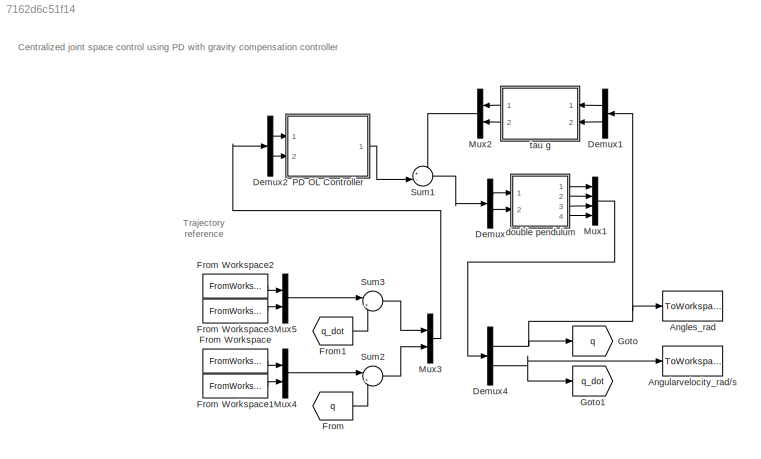
MODEL slx_7162d6c51f14
KIND model
CONFIG AbsTol = auto
CONFIG EnableMultiTasking = off
CONFIG FixedStep = auto
CONFIG MaxStep = auto
CONFIG MinStep = auto
CONFIG RelTol = 1e-3
CONFIG SampleTimeConstraint = Unconstrained
CONFIG Solver = VariableStepAuto
CONFIG SolverName = VariableStepAuto
CONFIG StartTime = 0.0
CONFIG StopTime = 10.0
BLOCK [ToWorkspace] Angles_rad
  FixptAsFi = on
  MaxDataPoints = inf
  Ports = [1]
  SampleTime = -1
  Save2DSignal = 3-D array (concatenate along third dimension)
  SaveFormat = Timeseries
  VariableName = q
BLOCK [ToWorkspace] Angularvelocity_rad//s
  FixptAsFi = on
  MaxDataPoints = inf
  Ports = [1]
  SampleTime = -1
  Save2DSignal = 3-D array (concatenate along third dimension)
  SaveFormat = Timeseries
  VariableName = q_dot
BLOCK [Demux] Demux
  DisplayOption = bar
  Outputs = 2
  Ports = [1, 2]
BLOCK [Demux] Demux1
  DisplayOption = bar
  Outputs = 2
  Ports = [1, 2]
BLOCK [Demux] Demux2
  DisplayOption = bar
  Outputs = 2
  Ports = [1, 2]
BLOCK [Demux] Demux4
  DisplayOption = bar
  Outputs = 2
  Ports = [1, 2]
BLOCK [From] From
  GotoTag = q
BLOCK [FromWorkspace] From Workspace
  SampleTime = 0
  VariableName = q1d
  ZeroCross = on
BLOCK [FromWorkspace] From Workspace1
  SampleTime = 0
  VariableName = q2d
  ZeroCross = on
BLOCK [FromWorkspace] From Workspace2
  SampleTime = 0
  VariableName = q1d_dot
  ZeroCross = on
BLOCK [FromWorkspace] From Workspace3
  SampleTime = 0
  VariableName = q2d_dot
  ZeroCross = on
BLOCK [From] From1
  GotoTag = q_dot
BLOCK [Goto] Goto
  GotoTag = q
BLOCK [Goto] Goto1
  GotoTag = q_dot
BLOCK [Mux] Mux1
  DisplayOption = bar
  Ports = [4, 1]
BLOCK [Mux] Mux2
  DisplayOption = bar
  Inputs = 2
  Ports = [2, 1]
BLOCK [Mux] Mux3
  DisplayOption = bar
  Inputs = 2
  Ports = [2, 1]
BLOCK [Mux] Mux4
  DisplayOption = bar
  Inputs = 2
  Ports = [2, 1]
BLOCK [Mux] Mux5
  DisplayOption = bar
  Inputs = 2
  Ports = [2, 1]
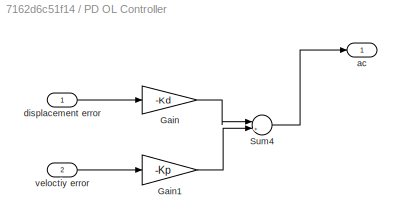
BLOCK [SubSystem] PD OL Controller
  Ports = [2, 1]
  RequestExecContextInheritance = off
BLOCK [Gain] PD OL Controller/Gain
  Gain = -Kd
  Multiplication = Matrix(K*u)
  OutDataTypeStr = Inherit: Inherit via internal rule
  ParamDataTypeStr = Inherit: Inherit via internal rule
  SaturateOnIntegerOverflow = off
BLOCK [Gain] PD OL Controller/Gain1
  Gain = -Kp
  Multiplication = Matrix(K*u)
  OutDataTypeStr = Inherit: Inherit via internal rule
  ParamDataTypeStr = Inherit: Inherit via internal rule
  SaturateOnIntegerOverflow = off
BLOCK [Sum] PD OL Controller/Sum4
  IconShape = round
  InputSameDT = off
  Inputs = |++
  OutDataTypeStr = Inherit: Inherit via internal rule
  Ports = [2, 1]
  SaturateOnIntegerOverflow = off
BLOCK [Outport] PD OL Controller/ac
  IconDisplay = Port number
BLOCK [Inport] PD OL Controller/displacement error
  IconDisplay = Port number
BLOCK [Inport] PD OL Controller/veloctiy error
  IconDisplay = Port number
  Port = 2
BLOCK [Sum] Sum1
  IconShape = round
  InputSameDT = off
  Inputs = +-|
  OutDataTypeStr = Inherit: Inherit via internal rule
  Ports = [2, 1]
  SaturateOnIntegerOverflow = off
BLOCK [Sum] Sum2
  IconShape = round
  InputSameDT = off
  Inputs = |+-
  OutDataTypeStr = Inherit: Inherit via internal rule
  Ports = [2, 1]
  SaturateOnIntegerOverflow = off
BLOCK [Sum] Sum3
  IconShape = round
  InputSameDT = off
  Inputs = |+-
  OutDataTypeStr = Inherit: Inherit via internal rule
  Ports = [2, 1]
  SaturateOnIntegerOverflow = off
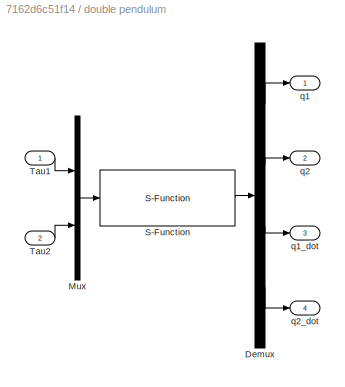
BLOCK [SubSystem] double pendulum 
  Ports = [2, 4]
  RequestExecContextInheritance = off
BLOCK [Demux] double pendulum /Demux
  DisplayOption = bar
  Ports = [1, 4]
BLOCK [Mux] double pendulum /Mux
  DisplayOption = bar
  Inputs = 2
  Ports = [2, 1]
BLOCK [S-Function] double pendulum /S-Function
  EnableBusSupport = off
  FunctionName = m_I_doublependulum
  Parameters = 0 0 0 0
  Ports = [1, 1]
  SFcnIsStateOwnerBlock = off
  SFunctionDeploymentMode = off
BLOCK [Inport] double pendulum /Tau1
  IconDisplay = Port number
BLOCK [Inport] double pendulum /Tau2 
  IconDisplay = Port number
  Port = 2
BLOCK [Outport] double pendulum /q1
  IconDisplay = Port number
BLOCK [Outport] double pendulum /q1_dot 
  IconDisplay = Port number
  Port = 3
BLOCK [Outport] double pendulum /q2 
  IconDisplay = Port number
  Port = 2
BLOCK [Outport] double pendulum /q2_dot
  IconDisplay = Port number
  Port = 4
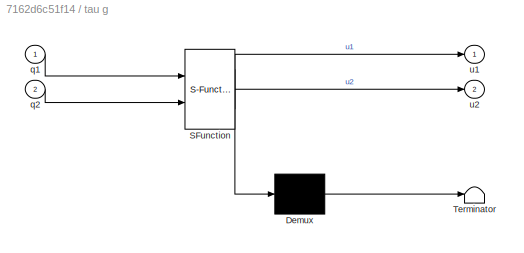
BLOCK [SubSystem] tau g 
  ErrorFcn = Stateflow.Translate.translate
  PermitHierarchicalResolution = ExplicitOnly
  Ports = [2, 2]
  RequestExecContextInheritance = off
  SFBlockType = MATLAB Function
  TreatAsAtomicUnit = on
BLOCK [Demux] tau g / Demux 
  Outputs = 1
  Ports = [1, 1]
BLOCK [S-Function] tau g / SFunction 
  EnableBusSupport = on
  FunctionName = sf_sfun
  PortCounts = [2 3]
  Ports = [2, 3]
  SFcnIsStateOwnerBlock = off
  SFunctionDeploymentMode = off
  Tag = Stateflow S-Function s_VI_pd_with_grav_control_scheme 1
BLOCK [Terminator] tau g / Terminator 
BLOCK [Inport] tau g /q1
  IconDisplay = Port number
BLOCK [Inport] tau g /q2
  IconDisplay = Port number
  Port = 2
BLOCK [Outport] tau g /u1
  IconDisplay = Port number
BLOCK [Outport] tau g /u2
  IconDisplay = Port number
  Port = 2
ANNOTATION (root): Trajectory reference
ANNOTATION (root): Centralized joint space control using PD with gravity compensation controller
LINE Demux1:1 -> tau g :1
LINE Demux1:2 -> tau g :2
LINE Demux2:1 -> PD OL Controller:1
LINE Demux2:2 -> PD OL Controller:2
NET Demux4:1 -> Angles_rad:1, Demux1:1, Goto:1
NET Demux4:2 -> Angularvelocity_rad//s:1, Goto1:1
LINE Demux:1 -> double pendulum :1
LINE Demux:2 -> double pendulum :2
LINE From Workspace1:1 -> Mux4:2
LINE From Workspace2:1 -> Mux5:1
LINE From Workspace3:1 -> Mux5:2
LINE From Workspace:1 -> Mux4:1
LINE From1:1 -> Sum3:2
LINE From:1 -> Sum2:2
LINE Mux1:1 -> Demux4:1
LINE Mux2:1 -> Sum1:1
LINE Mux3:1 -> Demux2:1
LINE Mux4:1 -> Sum2:1
LINE Mux5:1 -> Sum3:1
LINE PD OL Controller/Gain1:1 -> PD OL Controller/Sum4:2
LINE PD OL Controller/Gain:1 -> PD OL Controller/Sum4:1
LINE PD OL Controller/Sum4:1 -> PD OL Controller/ac:1
LINE PD OL Controller/displacement error:1 -> PD OL Controller/Gain:1
LINE PD OL Controller/veloctiy error:1 -> PD OL Controller/Gain1:1
LINE PD OL Controller:1 -> Sum1:2
LINE Sum1:1 -> Demux:1
LINE Sum2:1 -> Mux3:2
LINE Sum3:1 -> Mux3:1
LINE double pendulum /Demux:1 -> double pendulum /q1:1
LINE double pendulum /Demux:2 -> double pendulum /q2 :1
LINE double pendulum /Demux:3 -> double pendulum /q1_dot :1
LINE double pendulum /Demux:4 -> double pendulum /q2_dot:1
LINE double pendulum /Mux:1 -> double pendulum /S-Function:1
LINE double pendulum /S-Function:1 -> double pendulum /Demux:1
LINE double pendulum /Tau1:1 -> double pendulum /Mux:1
LINE double pendulum /Tau2 :1 -> double pendulum /Mux:2
LINE double pendulum :1 -> Mux1:1
LINE double pendulum :2 -> Mux1:2
LINE double pendulum :3 -> Mux1:3
LINE double pendulum :4 -> Mux1:4
LINE tau g :1 -> Mux2:1
LINE tau g :2 -> Mux2:2
note: NET lines group one-source signal fan-out (src -> all destinations, sorted); 1:1 wires keep LINE
CHART tau g
 states=1 transitions=1
  STATE_LABEL 'eML_blk_kernel()'
  STATE_LABEL 'SCRIPT:\nfunction [u1,u2] = fcn(q1,q2)\nGrav=10;     %%Gravity acceleration constant\nM=1;       \nL1=1;\nL2=1;\nGz=1;\nbeta=20;\nG1=M*(L1^2+L2^2)+Gz; G2=M*L2^2+Gz;\ng1=M*Grav*(L1*cos(q1)+L2*cos(q1+q2));    g2=M*Grav*L2*cos(q1+q2);\nu1=g1;u2=g2;'
